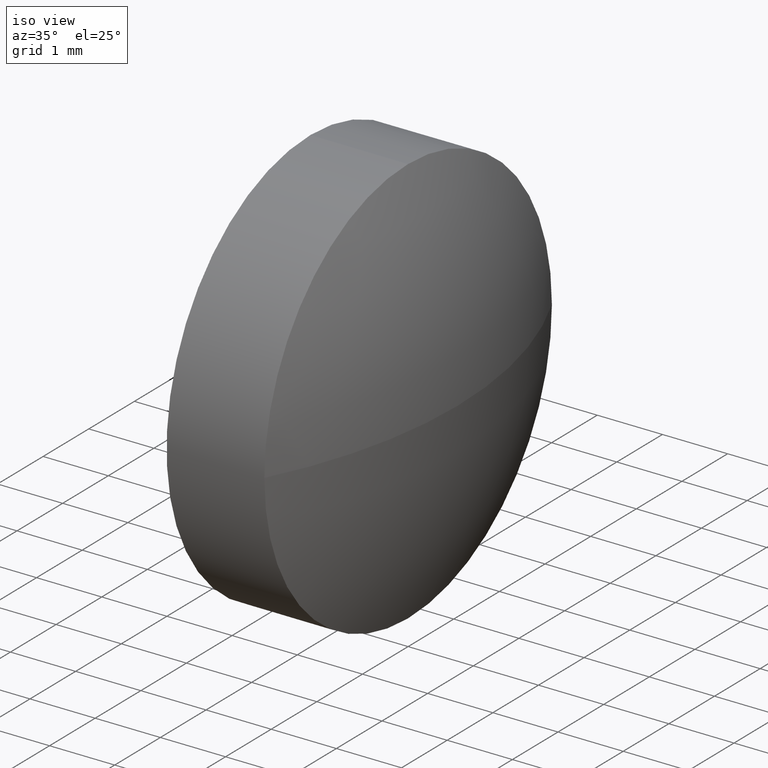
[diagram: clean part render]
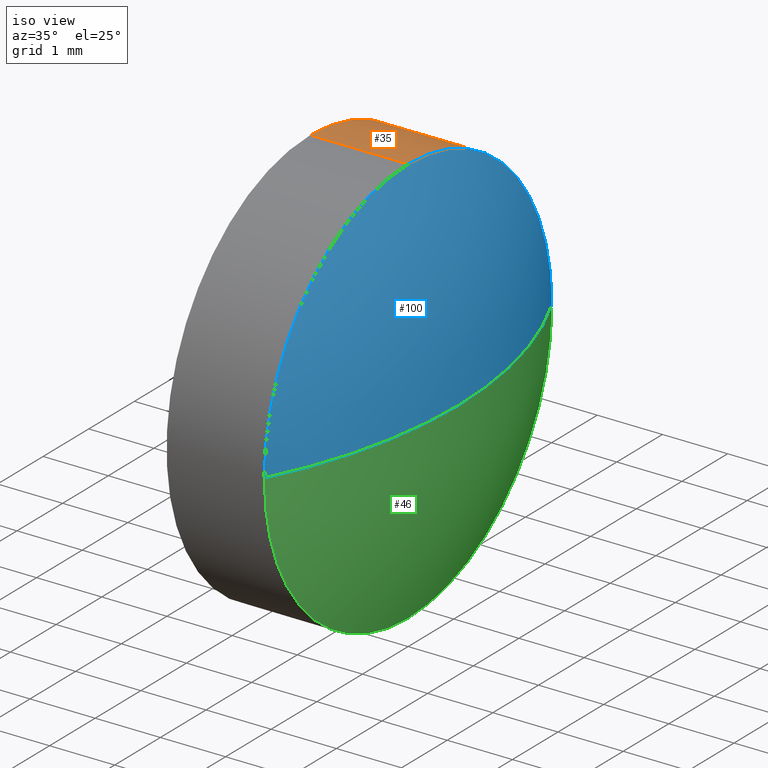
[diagram: same view with three faces highlighted in distinct colors, each labeled with its STEP entity id]
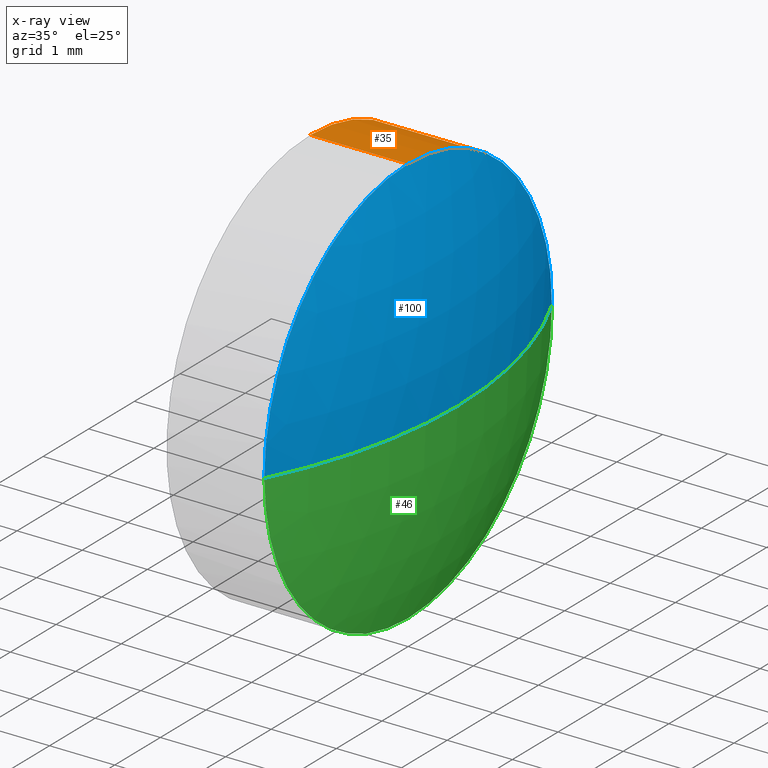
[diagram: x-ray of the same camera — body ghosted, the three highlighted faces saturated]
A machine part, iso view with three faces highlighted in distinct colors.
The next image is the same camera in x-ray (body ghosted, the three faces saturated) — at least one of them is partly hidden behind the body in this view.
Their STEP definitions:

[orange] entity #35 — the highlighted cylindrical surface (partial cylindrical patch) has radius 3.15 mm, axis along (-1, -0, -0).
#4 = LINE ( 'NONE', #102, #105 ) ;
#5 = ORIENTED_EDGE ( 'NONE', *, *, #86, .F. ) ;
#8 = FACE_OUTER_BOUND ( 'NONE', #74, .T. ) ;
#22 = DIRECTION ( 'NONE',  ( -1.000000000000000000, -0.0000000000000000000, -0.0000000000000000000 ) ) ;
#23 = CIRCLE ( 'NONE', #125, 3.149999999999999900 ) ;
#24 = CARTESIAN_POINT ( 'NONE',  ( 401.1884556923478700, 12.44565855584187600, 0.0000000000000000000 ) ) ;
#25 = EDGE_CURVE ( 'NONE', #117, #123, #47, .T. ) ;
#26 = CARTESIAN_POINT ( 'NONE',  ( 402.6884556923478700, 15.59565855584187400, 3.857637417314135600E-016 ) ) ;
#29 = VERTEX_POINT ( 'NONE', #26 ) ;
#35 = ADVANCED_FACE ( 'NONE', ( #8 ), #114, .T. ) ;
#42 = CARTESIAN_POINT ( 'NONE',  ( 401.1884556923478700, 12.44565855584187600, 3.149999999999999900 ) ) ;
#47 = LINE ( 'NONE', #121, #93 ) ;
#51 = DIRECTION ( 'NONE',  ( -1.000000000000000000, -0.0000000000000000000, -0.0000000000000000000 ) ) ;
#53 = DIRECTION ( 'NONE',  ( -1.000000000000000000, -0.0000000000000000000, -0.0000000000000000000 ) ) ;
#56 = DIRECTION ( 'NONE',  ( 0.0000000000000000000, 0.0000000000000000000, 1.000000000000000000 ) ) ;
#57 = DIRECTION ( 'NONE',  ( 0.0000000000000000000, 0.0000000000000000000, 1.000000000000000000 ) ) ;
#58 = AXIS2_PLACEMENT_3D ( 'NONE', #24, #53, #75 ) ;
#59 = CARTESIAN_POINT ( 'NONE',  ( 402.6884556923478700, 12.44565855584187600, 0.0000000000000000000 ) ) ;
#62 = ORIENTED_EDGE ( 'NONE', *, *, #145, .T. ) ;
#64 = AXIS2_PLACEMENT_3D ( 'NONE', #119, #22, #154 ) ;
#72 = ORIENTED_EDGE ( 'NONE', *, *, #90, .T. ) ;
#74 = EDGE_LOOP ( 'NONE', ( #83, #72, #5, #112, #62 ) ) ;
#75 = DIRECTION ( 'NONE',  ( 0.0000000000000000000, 0.0000000000000000000, 1.000000000000000000 ) ) ;
#79 = CARTESIAN_POINT ( 'NONE',  ( 402.6884556923478700, 12.44565855584187600, 3.149999999999999900 ) ) ;
#83 = ORIENTED_EDGE ( 'NONE', *, *, #133, .T. ) ;
#86 = EDGE_CURVE ( 'NONE', #123, #167, #155, .T. ) ;
#88 = AXIS2_PLACEMENT_3D ( 'NONE', #59, #169, #56 ) ;
#90 = EDGE_CURVE ( 'NONE', #177, #167, #4, .T. ) ;
#93 = VECTOR ( 'NONE', #165, 1000.000000000000000 ) ;
#102 = CARTESIAN_POINT ( 'NONE',  ( 400.3278176035988700, 12.44565855584187600, -3.149999999999999900 ) ) ;
#105 = VECTOR ( 'NONE', #51, 1000.000000000000000 ) ;
#108 = DIRECTION ( 'NONE',  ( -1.000000000000000000, -0.0000000000000000000, -0.0000000000000000000 ) ) ;
#112 = ORIENTED_EDGE ( 'NONE', *, *, #25, .F. ) ;
#114 = CYLINDRICAL_SURFACE ( 'NONE', #64, 3.149999999999999900 ) ;
#117 = VERTEX_POINT ( 'NONE', #79 ) ;
#119 = CARTESIAN_POINT ( 'NONE',  ( 400.3278176035988700, 12.44565855584187600, 0.0000000000000000000 ) ) ;
#121 = CARTESIAN_POINT ( 'NONE',  ( 400.3278176035988700, 12.44565855584187600, 3.149999999999999900 ) ) ;
#123 = VERTEX_POINT ( 'NONE', #42 ) ;
#125 = AXIS2_PLACEMENT_3D ( 'NONE', #157, #108, #57 ) ;
#127 = CARTESIAN_POINT ( 'NONE',  ( 401.1884556923478700, 12.44565855584187600, -3.149999999999999900 ) ) ;
#133 = EDGE_CURVE ( 'NONE', #29, #177, #136, .T. ) ;
#136 = CIRCLE ( 'NONE', #88, 3.149999999999999900 ) ;
#144 = CARTESIAN_POINT ( 'NONE',  ( 402.6884556923478700, 12.44565855584187600, -3.149999999999999900 ) ) ;
#145 = EDGE_CURVE ( 'NONE', #117, #29, #23, .T. ) ;
#154 = DIRECTION ( 'NONE',  ( 0.0000000000000000000, 0.0000000000000000000, 1.000000000000000000 ) ) ;
#155 = CIRCLE ( 'NONE', #58, 3.149999999999999900 ) ;
#157 = CARTESIAN_POINT ( 'NONE',  ( 402.6884556923478700, 12.44565855584187600, 0.0000000000000000000 ) ) ;
#165 = DIRECTION ( 'NONE',  ( -1.000000000000000000, -0.0000000000000000000, -0.0000000000000000000 ) ) ;
#167 = VERTEX_POINT ( 'NONE', #127 ) ;
#169 = DIRECTION ( 'NONE',  ( -1.000000000000000000, -0.0000000000000000000, -0.0000000000000000000 ) ) ;
#177 = VERTEX_POINT ( 'NONE', #144 ) ;

[blue] entity #100 — the highlighted spherical surface has radius 6.908 mm.
#2 = ORIENTED_EDGE ( 'NONE', *, *, #122, .F. ) ;
#9 = FACE_OUTER_BOUND ( 'NONE', #107, .T. ) ;
#13 = CARTESIAN_POINT ( 'NONE',  ( 402.6884556923478700, 12.44565855584187600, 0.0000000000000000000 ) ) ;
#15 = DIRECTION ( 'NONE',  ( 0.0000000000000000000, -1.000000000000000000, -1.224646799147353200E-016 ) ) ;
#17 = AXIS2_PLACEMENT_3D ( 'NONE', #38, #50, #151 ) ;
#20 = CIRCLE ( 'NONE', #113, 3.149999999999999900 ) ;
#23 = CIRCLE ( 'NONE', #125, 3.149999999999999900 ) ;
#26 = CARTESIAN_POINT ( 'NONE',  ( 402.6884556923478700, 15.59565855584187400, 3.857637417314135600E-016 ) ) ;
#29 = VERTEX_POINT ( 'NONE', #26 ) ;
#38 = CARTESIAN_POINT ( 'NONE',  ( 396.5404951660320300, 12.44565855584189700, 0.0000000000000000000 ) ) ;
#49 = ORIENTED_EDGE ( 'NONE', *, *, #145, .F. ) ;
#50 = DIRECTION ( 'NONE',  ( 0.0000000000000000000, 0.0000000000000000000, 1.000000000000000000 ) ) ;
#54 = VERTEX_POINT ( 'NONE', #118 ) ;
#57 = DIRECTION ( 'NONE',  ( 0.0000000000000000000, 0.0000000000000000000, 1.000000000000000000 ) ) ;
#60 = DIRECTION ( 'NONE',  ( -1.000000000000000000, 0.0000000000000000000, 0.0000000000000000000 ) ) ;
#61 = CIRCLE ( 'NONE', #152, 6.907960526315816800 ) ;
#67 = DIRECTION ( 'NONE',  ( 0.0000000000000000000, 0.0000000000000000000, -1.000000000000000000 ) ) ;
#68 = VERTEX_POINT ( 'NONE', #135 ) ;
#79 = CARTESIAN_POINT ( 'NONE',  ( 402.6884556923478700, 12.44565855584187600, 3.149999999999999900 ) ) ;
#94 = AXIS2_PLACEMENT_3D ( 'NONE', #160, #67, #60 ) ;
#95 = CARTESIAN_POINT ( 'NONE',  ( 396.5404951660320300, 12.44565855584189700, 0.0000000000000000000 ) ) ;
#97 = ORIENTED_EDGE ( 'NONE', *, *, #116, .F. ) ;
#100 = ADVANCED_FACE ( 'NONE', ( #9 ), #115, .T. ) ;
#107 = EDGE_LOOP ( 'NONE', ( #97, #130, #49, #2 ) ) ;
#108 = DIRECTION ( 'NONE',  ( -1.000000000000000000, -0.0000000000000000000, -0.0000000000000000000 ) ) ;
#109 = DIRECTION ( 'NONE',  ( -1.000000000000000000, -0.0000000000000000000, -0.0000000000000000000 ) ) ;
#111 = EDGE_CURVE ( 'NONE', #68, #29, #61, .T. ) ;
#113 = AXIS2_PLACEMENT_3D ( 'NONE', #13, #109, #168 ) ;
#115 = SPHERICAL_SURFACE ( 'NONE', #17, 6.907960526315816800 ) ;
#116 = EDGE_CURVE ( 'NONE', #68, #54, #129, .T. ) ;
#117 = VERTEX_POINT ( 'NONE', #79 ) ;
#118 = CARTESIAN_POINT ( 'NONE',  ( 402.6884556923478700, 9.295658555841898300, 0.0000000000000000000 ) ) ;
#122 = EDGE_CURVE ( 'NONE', #54, #117, #20, .T. ) ;
#125 = AXIS2_PLACEMENT_3D ( 'NONE', #157, #108, #57 ) ;
#129 = CIRCLE ( 'NONE', #94, 6.907960526315815000 ) ;
#130 = ORIENTED_EDGE ( 'NONE', *, *, #111, .T. ) ;
#135 = CARTESIAN_POINT ( 'NONE',  ( 403.4484556923478100, 12.44565855584189700, 0.0000000000000000000 ) ) ;
#141 = DIRECTION ( 'NONE',  ( 0.0000000000000000000, -1.224646799147353200E-016, 1.000000000000000000 ) ) ;
#145 = EDGE_CURVE ( 'NONE', #117, #29, #23, .T. ) ;
#151 = DIRECTION ( 'NONE',  ( 0.0000000000000000000, -1.000000000000000000, 0.0000000000000000000 ) ) ;
#152 = AXIS2_PLACEMENT_3D ( 'NONE', #95, #141, #15 ) ;
#157 = CARTESIAN_POINT ( 'NONE',  ( 402.6884556923478700, 12.44565855584187600, 0.0000000000000000000 ) ) ;
#160 = CARTESIAN_POINT ( 'NONE',  ( 396.5404951660320300, 12.44565855584189700, 0.0000000000000000000 ) ) ;
#168 = DIRECTION ( 'NONE',  ( 0.0000000000000000000, 0.0000000000000000000, 1.000000000000000000 ) ) ;

[green] entity #46 — the highlighted spherical surface has radius 6.908 mm.
#7 = DIRECTION ( 'NONE',  ( 0.0000000000000000000, -1.000000000000000000, 0.0000000000000000000 ) ) ;
#15 = DIRECTION ( 'NONE',  ( 0.0000000000000000000, -1.000000000000000000, -1.224646799147353200E-016 ) ) ;
#26 = CARTESIAN_POINT ( 'NONE',  ( 402.6884556923478700, 15.59565855584187400, 3.857637417314135600E-016 ) ) ;
#29 = VERTEX_POINT ( 'NONE', #26 ) ;
#46 = ADVANCED_FACE ( 'NONE', ( #103 ), #82, .T. ) ;
#54 = VERTEX_POINT ( 'NONE', #118 ) ;
#56 = DIRECTION ( 'NONE',  ( 0.0000000000000000000, 0.0000000000000000000, 1.000000000000000000 ) ) ;
#59 = CARTESIAN_POINT ( 'NONE',  ( 402.6884556923478700, 12.44565855584187600, 0.0000000000000000000 ) ) ;
#60 = DIRECTION ( 'NONE',  ( -1.000000000000000000, 0.0000000000000000000, 0.0000000000000000000 ) ) ;
#61 = CIRCLE ( 'NONE', #152, 6.907960526315816800 ) ;
#63 = CARTESIAN_POINT ( 'NONE',  ( 402.6884556923478700, 12.44565855584187600, 0.0000000000000000000 ) ) ;
#65 = DIRECTION ( 'NONE',  ( -1.000000000000000000, -0.0000000000000000000, -0.0000000000000000000 ) ) ;
#67 = DIRECTION ( 'NONE',  ( 0.0000000000000000000, 0.0000000000000000000, -1.000000000000000000 ) ) ;
#68 = VERTEX_POINT ( 'NONE', #135 ) ;
#76 = DIRECTION ( 'NONE',  ( 0.0000000000000000000, 0.0000000000000000000, 1.000000000000000000 ) ) ;
#82 = SPHERICAL_SURFACE ( 'NONE', #131, 6.907960526315816800 ) ;
#88 = AXIS2_PLACEMENT_3D ( 'NONE', #59, #169, #56 ) ;
#94 = AXIS2_PLACEMENT_3D ( 'NONE', #160, #67, #60 ) ;
#95 = CARTESIAN_POINT ( 'NONE',  ( 396.5404951660320300, 12.44565855584189700, 0.0000000000000000000 ) ) ;
#98 = ORIENTED_EDGE ( 'NONE', *, *, #111, .F. ) ;
#99 = AXIS2_PLACEMENT_3D ( 'NONE', #63, #65, #76 ) ;
#101 = EDGE_CURVE ( 'NONE', #177, #54, #149, .T. ) ;
#103 = FACE_OUTER_BOUND ( 'NONE', #156, .T. ) ;
#111 = EDGE_CURVE ( 'NONE', #68, #29, #61, .T. ) ;
#116 = EDGE_CURVE ( 'NONE', #68, #54, #129, .T. ) ;
#118 = CARTESIAN_POINT ( 'NONE',  ( 402.6884556923478700, 9.295658555841898300, 0.0000000000000000000 ) ) ;
#129 = CIRCLE ( 'NONE', #94, 6.907960526315815000 ) ;
#131 = AXIS2_PLACEMENT_3D ( 'NONE', #179, #137, #7 ) ;
#133 = EDGE_CURVE ( 'NONE', #29, #177, #136, .T. ) ;
#135 = CARTESIAN_POINT ( 'NONE',  ( 403.4484556923478100, 12.44565855584189700, 0.0000000000000000000 ) ) ;
#136 = CIRCLE ( 'NONE', #88, 3.149999999999999900 ) ;
#137 = DIRECTION ( 'NONE',  ( 0.0000000000000000000, 0.0000000000000000000, 1.000000000000000000 ) ) ;
#140 = ORIENTED_EDGE ( 'NONE', *, *, #133, .F. ) ;
#141 = DIRECTION ( 'NONE',  ( 0.0000000000000000000, -1.224646799147353200E-016, 1.000000000000000000 ) ) ;
#144 = CARTESIAN_POINT ( 'NONE',  ( 402.6884556923478700, 12.44565855584187600, -3.149999999999999900 ) ) ;
#149 = CIRCLE ( 'NONE', #99, 3.149999999999999900 ) ;
#150 = ORIENTED_EDGE ( 'NONE', *, *, #101, .F. ) ;
#152 = AXIS2_PLACEMENT_3D ( 'NONE', #95, #141, #15 ) ;
#156 = EDGE_LOOP ( 'NONE', ( #98, #183, #150, #140 ) ) ;
#160 = CARTESIAN_POINT ( 'NONE',  ( 396.5404951660320300, 12.44565855584189700, 0.0000000000000000000 ) ) ;
#169 = DIRECTION ( 'NONE',  ( -1.000000000000000000, -0.0000000000000000000, -0.0000000000000000000 ) ) ;
#177 = VERTEX_POINT ( 'NONE', #144 ) ;
#179 = CARTESIAN_POINT ( 'NONE',  ( 396.5404951660320300, 12.44565855584189700, 0.0000000000000000000 ) ) ;
#183 = ORIENTED_EDGE ( 'NONE', *, *, #116, .T. ) ;